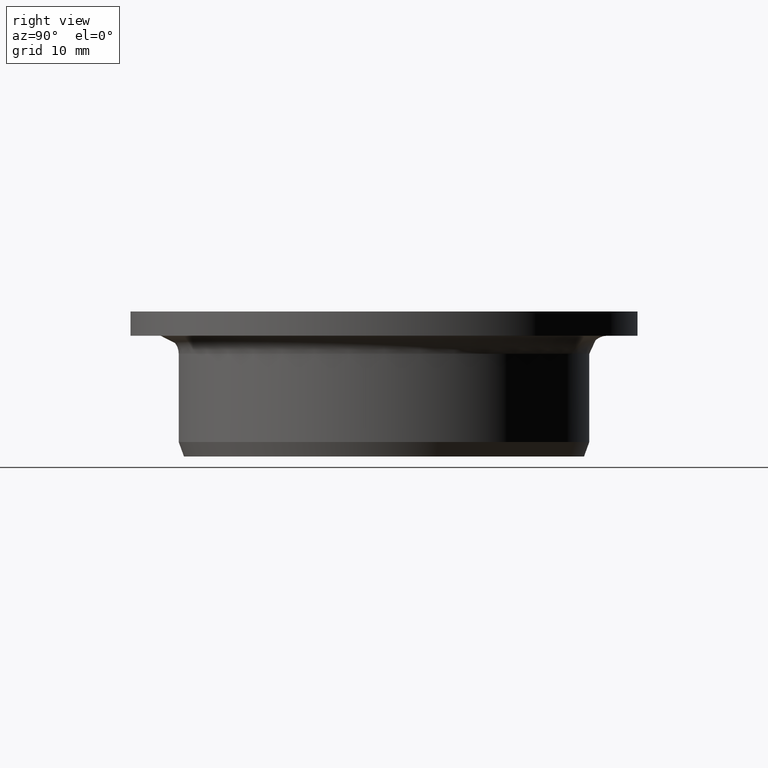
[diagram: clean part render]
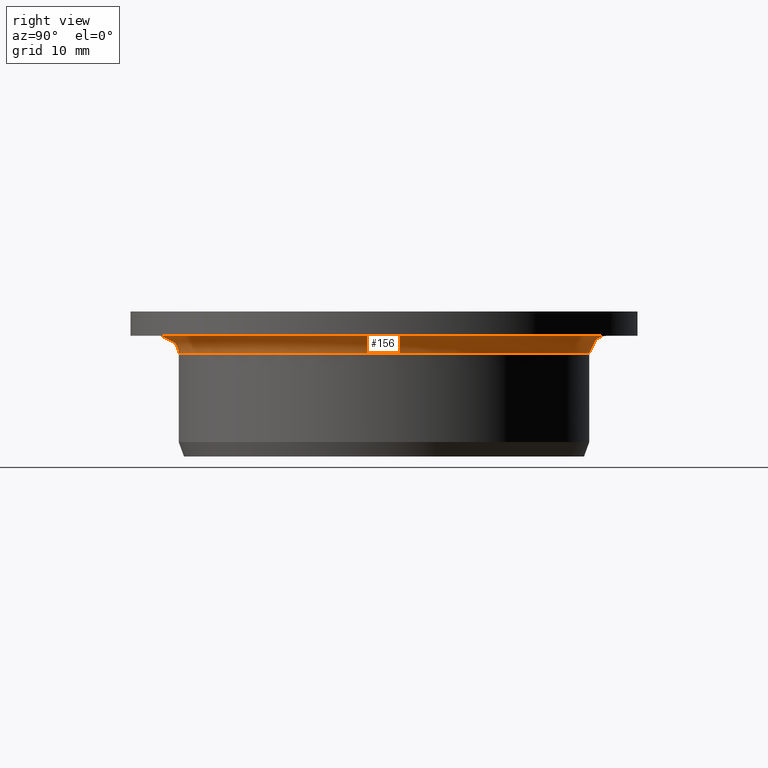
[diagram: same view with one face highlighted and labeled with its STEP entity id]
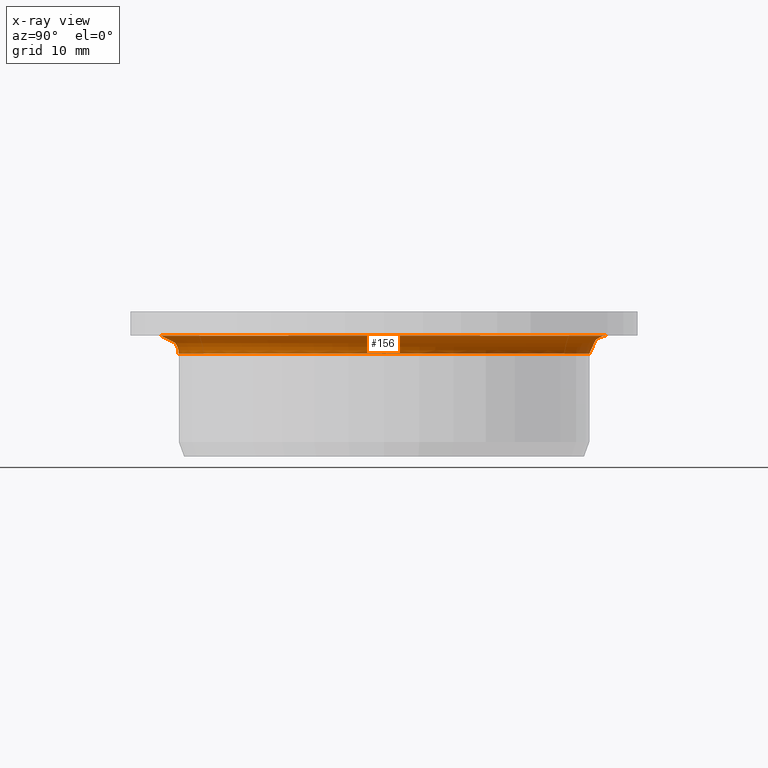
[diagram: x-ray of the same camera — body ghosted, the highlighted face saturated]
A machine part, right view. The second image highlights one B-rep face of the part: STEP entity #156.
The next image is the same camera in x-ray: the body ghosted, the highlighted face saturated — about 0% of this face is hidden behind the body in this view.
In plain terms, the highlighted toroidal blend (fillet) surface has major radius 18.5 mm and minor (blend) radius 1.5 mm.
Its self-contained STEP definition (entity closure, byte-faithful):
#156=ADVANCED_FACE('',(#173),#174,.F.);
#173=FACE_OUTER_BOUND('',#198,.T.);
#174=TOROIDAL_SURFACE('',#199,0.0185,0.0015);
#198=EDGE_LOOP('',(#243,#244,#245,#246));
#199=AXIS2_PLACEMENT_3D('',#247,#248,#249);
#243=ORIENTED_EDGE('',*,*,#328,.T.);
#244=ORIENTED_EDGE('',*,*,#329,.T.);
#245=ORIENTED_EDGE('',*,*,#330,.F.);
#246=ORIENTED_EDGE('',*,*,#316,.F.);
#247=CARTESIAN_POINT('',(0.0,0.0,0.0085));
#248=DIRECTION('',(0.0,-6.12323399573677E-017,-1.0));
#249=DIRECTION('',(0.0,1.0,-6.12323399573677E-017));
#316=EDGE_CURVE('',#349,#351,#352,.T.);
#328=EDGE_CURVE('',#349,#372,#373,.T.);
#329=EDGE_CURVE('',#372,#374,#375,.T.);
#330=EDGE_CURVE('',#351,#374,#376,.T.);
#349=VERTEX_POINT('',#418);
#351=VERTEX_POINT('',#421);
#352=B_SPLINE_CURVE_WITH_KNOTS('',3,(#422,#423,#424,#425,#426,#427,#428,#429,#430,#431,#432,#433,#434,#435),.UNSPECIFIED.,.F.,.F.,(4,2,2,2,2,2,4),(1.71307531679328E-005,0.000311438905464461,0.000605747057760989,0.000900055210057517,0.00119436336235405,0.00178297966694711,0.00237159597154017),.UNSPECIFIED.);
#372=VERTEX_POINT('',#484);
#373=CIRCLE('',#485,0.0185);
#374=VERTEX_POINT('',#486);
#375=B_SPLINE_CURVE_WITH_KNOTS('',3,(#487,#488,#489,#490,#491,#492,#493,#494,#495,#496,#497,#498,#499,#500),.UNSPECIFIED.,.F.,.F.,(4,2,2,2,2,2,4),(1.71307531679328E-005,0.000311438905464461,0.000605747057760989,0.000900055210057517,0.00119436336235405,0.00178297966694711,0.00237159597154017),.UNSPECIFIED.);
#376=CIRCLE('',#501,0.017);
#418=CARTESIAN_POINT('',(0.0184831036944218,-0.000790492138640357,0.01));
#421=CARTESIAN_POINT('',(0.0169918128628631,-0.000527537328953403,0.0085));
#422=CARTESIAN_POINT('',(0.0184831036944218,-0.000790492138640363,0.01));
#423=CARTESIAN_POINT('',(0.0183852864585701,-0.000773244320781381,0.01));
#424=CARTESIAN_POINT('',(0.0182889672725927,-0.000756260649533689,0.00999039832014736));
#425=CARTESIAN_POINT('',(0.0180992218111402,-0.000722803405212635,0.00995265298733319));
#426=CARTESIAN_POINT('',(0.0180048018242007,-0.000706154613997065,0.00992403389078933));
#427=CARTESIAN_POINT('',(0.0178249189661948,-0.000674436412763676,0.00984940653624287));
#428=CARTESIAN_POINT('',(0.0177394439655412,-0.00065936486397238,0.00980368710101675));
#429=CARTESIAN_POINT('',(0.0175774109514835,-0.000630794071828483,0.00969546658074867));
#430=CARTESIAN_POINT('',(0.0175006061968553,-0.000617251321340838,0.00963242895404576));
#431=CARTESIAN_POINT('',(0.0172938196433021,-0.000580789272701688,0.00942560964783034));
#432=CARTESIAN_POINT('',(0.0171819482263367,-0.000561063323520612,0.00925839373273313));
#433=CARTESIAN_POINT('',(0.0170318548710794,-0.00053459781536368,0.00889682682850351));
#434=CARTESIAN_POINT('',(0.016991812862861,-0.000527537328953036,0.00869907319790254));
#435=CARTESIAN_POINT('',(0.016991812862861,-0.000527537328953031,0.00850000000000024));
#484=CARTESIAN_POINT('',(0.0184831036944218,0.000790492138640358,0.01));
#485=AXIS2_PLACEMENT_3D('',#544,#545,#546);
#486=CARTESIAN_POINT('',(0.0169918128628631,0.000527537328953405,0.0085));
#487=CARTESIAN_POINT('',(0.0184831036944218,0.000790492138640363,0.01));
#488=CARTESIAN_POINT('',(0.0183852864585701,0.00077324432078138,0.01));
#489=CARTESIAN_POINT('',(0.0182889672725927,0.000756260649533689,0.00999039832014736));
#490=CARTESIAN_POINT('',(0.0180992218111402,0.000722803405212635,0.00995265298733319));
#491=CARTESIAN_POINT('',(0.0180048018242007,0.000706154613997065,0.00992403389078933));
#492=CARTESIAN_POINT('',(0.0178249189661948,0.000674436412763676,0.00984940653624287));
#493=CARTESIAN_POINT('',(0.0177394439655412,0.00065936486397238,0.00980368710101675));
#494=CARTESIAN_POINT('',(0.0175774109514835,0.000630794071828483,0.00969546658074867));
#495=CARTESIAN_POINT('',(0.0175006061968553,0.000617251321340838,0.00963242895404576));
#496=CARTESIAN_POINT('',(0.0172938196433021,0.000580789272701688,0.00942560964783034));
#497=CARTESIAN_POINT('',(0.0171819482263367,0.000561063323520612,0.00925839373273313));
#498=CARTESIAN_POINT('',(0.0170318548710794,0.00053459781536368,0.00889682682850351));
#499=CARTESIAN_POINT('',(0.016991812862861,0.000527537328953036,0.00869907319790254));
#500=CARTESIAN_POINT('',(0.016991812862861,0.000527537328953031,0.00850000000000024));
#501=AXIS2_PLACEMENT_3D('',#547,#548,#549);
#544=CARTESIAN_POINT('',(0.0,0.0,0.01));
#545=DIRECTION('',(0.0,-6.12323399573677E-017,-1.0));
#546=DIRECTION('',(0.0,1.0,-6.12323399573677E-017));
#547=CARTESIAN_POINT('',(0.0,0.0,0.0085));
#548=DIRECTION('',(0.0,-6.12323399573677E-017,-1.0));
#549=DIRECTION('',(0.0,1.0,-6.12323399573677E-017));